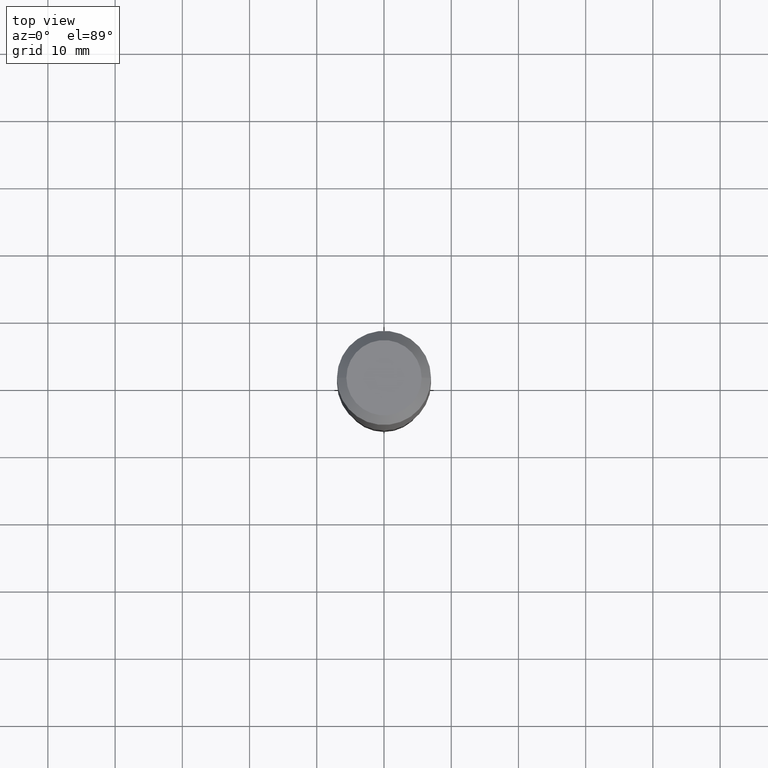
[diagram: clean part render]
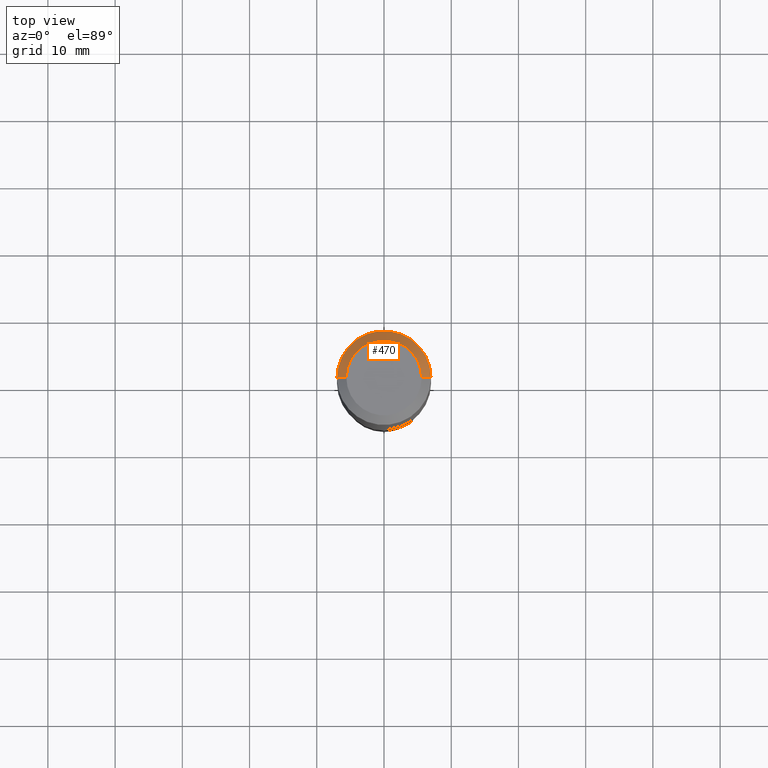
[diagram: same view with one face highlighted and labeled with its STEP entity id]
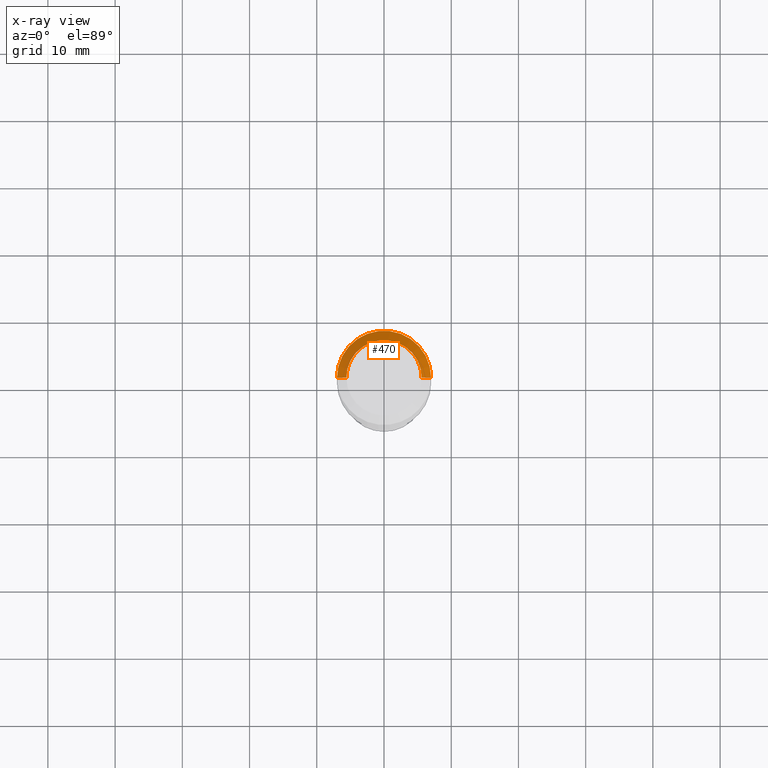
[diagram: x-ray of the same camera — body ghosted, the highlighted face saturated]
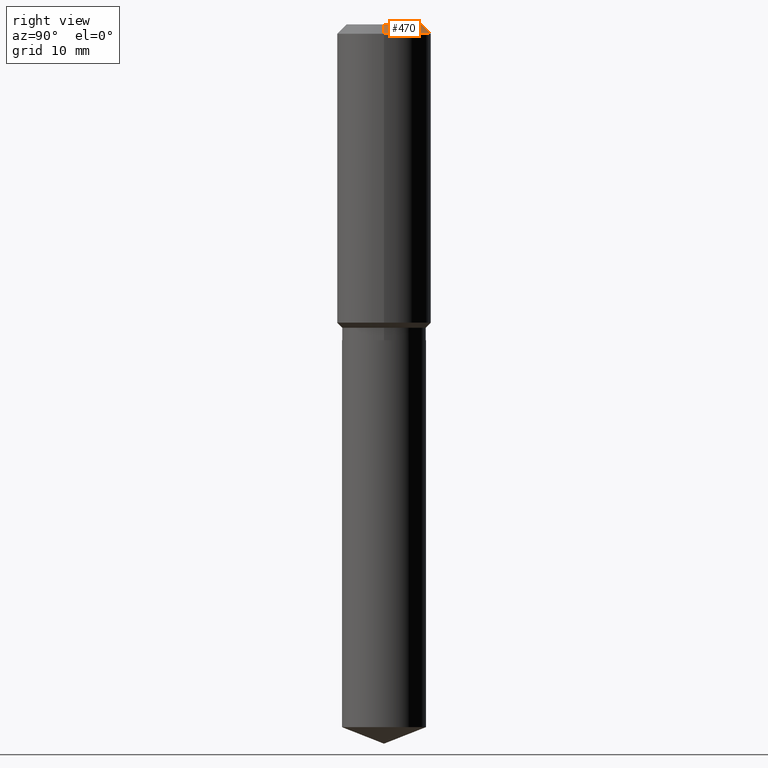
[diagram: same view with one face highlighted and labeled with its STEP entity id]
A machine part, top view. The second image highlights one B-rep face of the part: STEP entity #470.
The next image is the same camera in x-ray: the body ghosted, the highlighted face saturated — about 0% of this face is hidden behind the body in this view.
A second angle (right view) of the same face is appended — the face is thin or edge-on in the first view.
In plain terms, the highlighted conical surface has half-angle 45 deg.
Its self-contained STEP definition (entity closure, byte-faithful):
#5 = CARTESIAN_POINT ( 'NONE',  ( -0.2204800000000000093, 1.635828836874783961E-15, 3.860086710901350968E-18 ) ) ;
#7 = VECTOR ( 'NONE', #158, 39.37007874015748143 ) ;
#24 = AXIS2_PLACEMENT_3D ( 'NONE', #128, #358, #319 ) ;
#40 = CIRCLE ( 'NONE', #64, 0.2204800000000000093 ) ;
#43 = CARTESIAN_POINT ( 'NONE',  ( 0.2756000000000000116, -2.083203699582869812E-15, -0.05512000000000035621 ) ) ;
#53 = VERTEX_POINT ( 'NONE', #265 ) ;
#64 = AXIS2_PLACEMENT_3D ( 'NONE', #102, #411, #136 ) ;
#66 = VERTEX_POINT ( 'NONE', #5 ) ;
#102 = CARTESIAN_POINT ( 'NONE',  ( -9.439721640706190018E-47, 1.347742071746724849E-32, 3.860086710912454339E-18 ) ) ;
#119 = CARTESIAN_POINT ( 'NONE',  ( 0.2756000000000000116, -2.116954965367370658E-15, -0.05512000000000035621 ) ) ;
#121 = VECTOR ( 'NONE', #206, 39.37007874015748143 ) ;
#124 = CARTESIAN_POINT ( 'NONE',  ( 0.2204800000000000093, -1.797903149065768707E-15, 3.860086710924123164E-18 ) ) ;
#128 = CARTESIAN_POINT ( 'NONE',  ( 1.347942405969256063E-30, -1.924504513970354330E-16, -0.05512000000000035621 ) ) ;
#132 = EDGE_CURVE ( 'NONE', #242, #322, #455, .T. ) ;
#136 = DIRECTION ( 'NONE',  ( 1.000000000000000000, -6.982962677686266711E-15, 4.876132675269083677E-29 ) ) ;
#141 = ORIENTED_EDGE ( 'NONE', *, *, #465, .F. ) ;
#142 = CIRCLE ( 'NONE', #381, 0.2756000000000000116 ) ;
#158 = DIRECTION ( 'NONE',  ( 0.7071067811865453523, -7.319954787623248157E-15, -0.7071067811865496822 ) ) ;
#170 = CONICAL_SURFACE ( 'NONE', #24, 0.2756000000000000116, 0.7853981633974452814 ) ;
#198 = CARTESIAN_POINT ( 'NONE',  ( 1.347942405969256063E-30, -1.924504513970354330E-16, -0.05512000000000035621 ) ) ;
#199 = EDGE_LOOP ( 'NONE', ( #331, #481, #215, #141 ) ) ;
#206 = DIRECTION ( 'NONE',  ( -0.7071067811865453523, 2.468850131082234184E-15, -0.7071067811865496822 ) ) ;
#215 = ORIENTED_EDGE ( 'NONE', *, *, #276, .T. ) ;
#242 = VERTEX_POINT ( 'NONE', #124 ) ;
#265 = CARTESIAN_POINT ( 'NONE',  ( -0.2756000000000000116, -1.187865682456639571E-15, -0.05512000000000035621 ) ) ;
#276 = EDGE_CURVE ( 'NONE', #322, #53, #142, .T. ) ;
#277 = DIRECTION ( 'NONE',  ( -2.445468806185136597E-29, 3.491481338843145583E-15, 1.000000000000000000 ) ) ;
#285 = FACE_OUTER_BOUND ( 'NONE', #199, .T. ) ;
#319 = DIRECTION ( 'NONE',  ( -1.000000000000000000, 6.982962677686269077E-15, 0.000000000000000000 ) ) ;
#322 = VERTEX_POINT ( 'NONE', #119 ) ;
#331 = ORIENTED_EDGE ( 'NONE', *, *, #425, .F. ) ;
#358 = DIRECTION ( 'NONE',  ( 2.445468806185136597E-29, -3.491481338843145583E-15, -1.000000000000000000 ) ) ;
#381 = AXIS2_PLACEMENT_3D ( 'NONE', #198, #277, #473 ) ;
#411 = DIRECTION ( 'NONE',  ( -2.445468806185136597E-29, 3.491481338843145583E-15, 1.000000000000000000 ) ) ;
#425 = EDGE_CURVE ( 'NONE', #242, #66, #40, .T. ) ;
#435 = LINE ( 'NONE', #474, #121 ) ;
#455 = LINE ( 'NONE', #43, #7 ) ;
#465 = EDGE_CURVE ( 'NONE', #66, #53, #435, .T. ) ;
#470 = ADVANCED_FACE ( 'NONE', ( #285 ), #170, .T. ) ;
#473 = DIRECTION ( 'NONE',  ( 1.000000000000000000, -6.982962677686265922E-15, 0.000000000000000000 ) ) ;
#474 = CARTESIAN_POINT ( 'NONE',  ( -0.2756000000000000116, 1.732054062573300039E-15, -0.05512000000000035621 ) ) ;
#481 = ORIENTED_EDGE ( 'NONE', *, *, #132, .T. ) ;